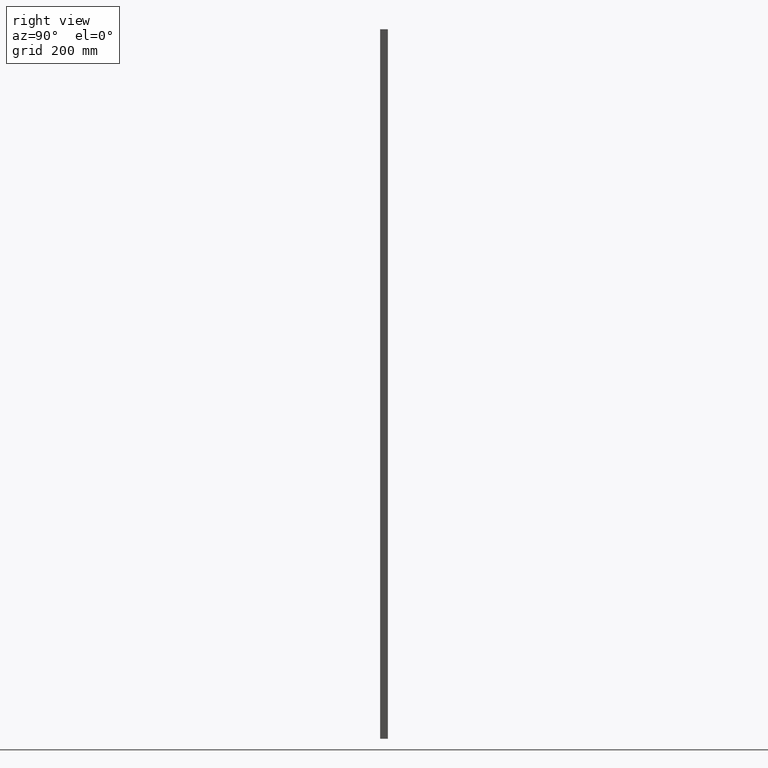
[diagram: clean part render]
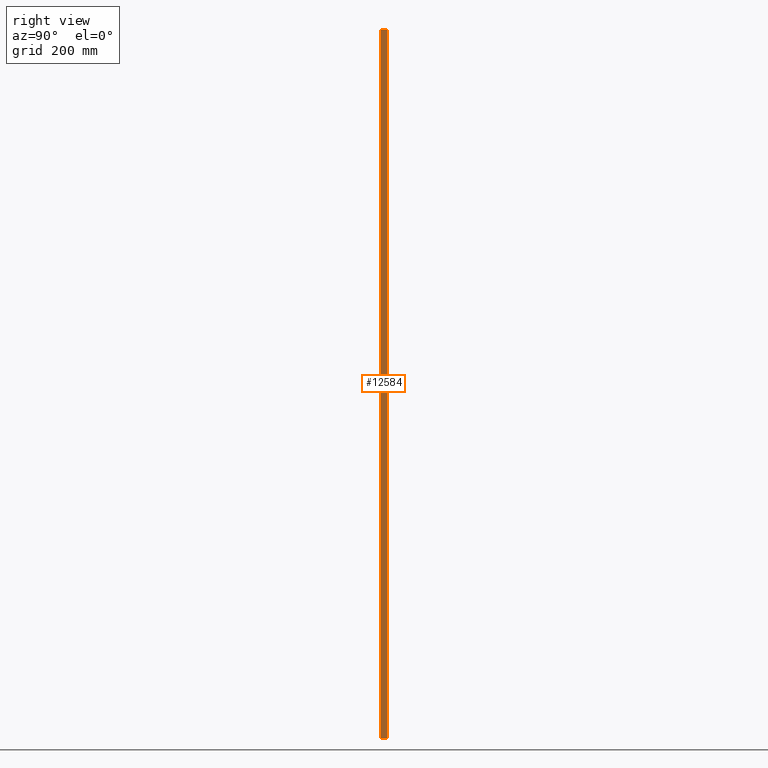
[diagram: same view with one face highlighted and labeled with its STEP entity id]
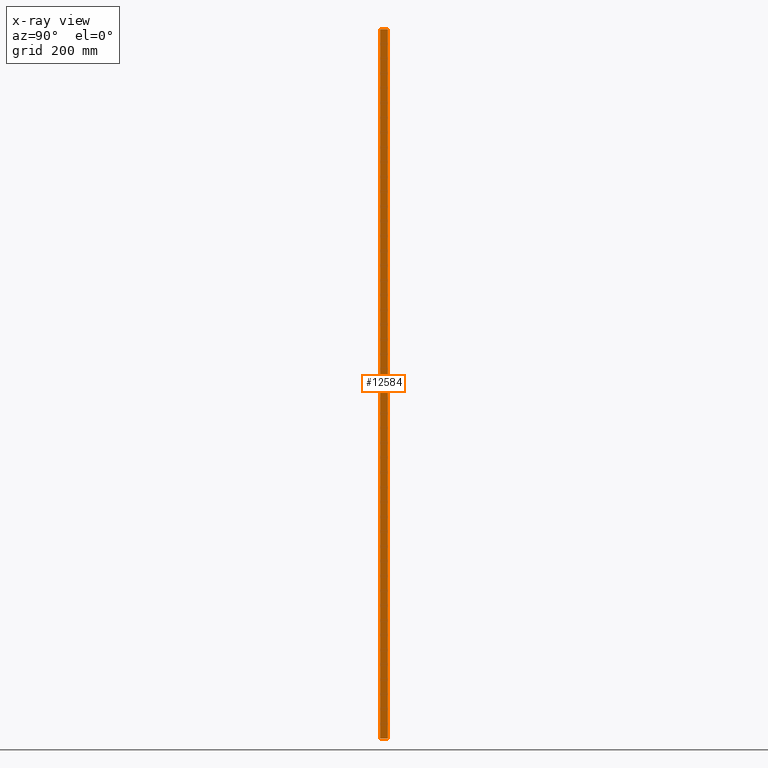
[diagram: x-ray of the same camera — body ghosted, the highlighted face saturated]
A machine part, right view. The second image highlights one B-rep face of the part: STEP entity #12584.
The next image is the same camera in x-ray: the body ghosted, the highlighted face saturated — about 0% of this face is hidden behind the body in this view.
In plain terms, the highlighted planar face has unit normal (-1, 0, 0).
Its self-contained STEP definition (entity closure, byte-faithful):
#943 = VERTEX_POINT ( 'NONE', #26871 ) ;
#1717 = CARTESIAN_POINT ( 'NONE',  ( 149.9999999999998579, 13.00000000000000000, -600.0000000000001137 ) ) ;
#2257 = LINE ( 'NONE', #20342, #30393 ) ;
#3758 = ORIENTED_EDGE ( 'NONE', *, *, #37471, .T. ) ;
#4923 = VECTOR ( 'NONE', #10107, 1000.000000000000000 ) ;
#5825 = CARTESIAN_POINT ( 'NONE',  ( 149.9999999999999716, 13.00000000000000000, 599.9999999999998863 ) ) ;
#6670 = PLANE ( 'NONE',  #37564 ) ;
#6782 = VECTOR ( 'NONE', #10743, 1000.000000000000000 ) ;
#6972 = EDGE_CURVE ( 'NONE', #8025, #36591, #19482, .T. ) ;
#7116 = VERTEX_POINT ( 'NONE', #20436 ) ;
#7452 = EDGE_CURVE ( 'NONE', #7116, #36591, #2257, .T. ) ;
#8025 = VERTEX_POINT ( 'NONE', #12278 ) ;
#10107 = DIRECTION ( 'NONE',  ( -9.251858538542971581E-17, -0.000000000000000000, -1.000000000000000000 ) ) ;
#10743 = DIRECTION ( 'NONE',  ( -0.000000000000000000, -1.000000000000000000, -0.000000000000000000 ) ) ;
#12278 = CARTESIAN_POINT ( 'NONE',  ( 149.9999999999998579, 13.00000000000000000, -600.0000000000001137 ) ) ;
#12522 = CARTESIAN_POINT ( 'NONE',  ( 149.9999999999998579, 0.000000000000000000, -600.0000000000001137 ) ) ;
#12584 = ADVANCED_FACE ( 'NONE', ( #15810 ), #6670, .F. ) ;
#13110 = ORIENTED_EDGE ( 'NONE', *, *, #14978, .F. ) ;
#13188 = ORIENTED_EDGE ( 'NONE', *, *, #7452, .T. ) ;
#14978 = EDGE_CURVE ( 'NONE', #943, #8025, #16505, .T. ) ;
#15810 = FACE_OUTER_BOUND ( 'NONE', #36751, .T. ) ;
#16500 = VECTOR ( 'NONE', #26841, 1000.000000000000000 ) ;
#16505 = LINE ( 'NONE', #1717, #4923 ) ;
#16953 = CARTESIAN_POINT ( 'NONE',  ( 149.9999999999998579, 13.00000000000000000, -600.0000000000001137 ) ) ;
#17229 = DIRECTION ( 'NONE',  ( -9.251858538542971581E-17, -0.000000000000000000, -1.000000000000000000 ) ) ;
#19482 = LINE ( 'NONE', #16953, #6782 ) ;
#20342 = CARTESIAN_POINT ( 'NONE',  ( 149.9999999999998579, 0.000000000000000000, -600.0000000000001137 ) ) ;
#20436 = CARTESIAN_POINT ( 'NONE',  ( 149.9999999999999716, 0.000000000000000000, 599.9999999999998863 ) ) ;
#20902 = DIRECTION ( 'NONE',  ( 9.251858538542974046E-17, 0.000000000000000000, 1.000000000000000000 ) ) ;
#21475 = DIRECTION ( 'NONE',  ( -1.000000000000000000, 0.000000000000000000, 9.251858538542974046E-17 ) ) ;
#26841 = DIRECTION ( 'NONE',  ( -0.000000000000000000, -1.000000000000000000, -0.000000000000000000 ) ) ;
#26871 = CARTESIAN_POINT ( 'NONE',  ( 149.9999999999999716, 13.00000000000000000, 599.9999999999998863 ) ) ;
#30190 = CARTESIAN_POINT ( 'NONE',  ( 149.9999999999998579, 13.00000000000000000, -600.0000000000001137 ) ) ;
#30393 = VECTOR ( 'NONE', #17229, 1000.000000000000000 ) ;
#31805 = ORIENTED_EDGE ( 'NONE', *, *, #6972, .F. ) ;
#32477 = LINE ( 'NONE', #5825, #16500 ) ;
#36591 = VERTEX_POINT ( 'NONE', #12522 ) ;
#36751 = EDGE_LOOP ( 'NONE', ( #13188, #31805, #13110, #3758 ) ) ;
#37471 = EDGE_CURVE ( 'NONE', #943, #7116, #32477, .T. ) ;
#37564 = AXIS2_PLACEMENT_3D ( 'NONE', #30190, #21475, #20902 ) ;